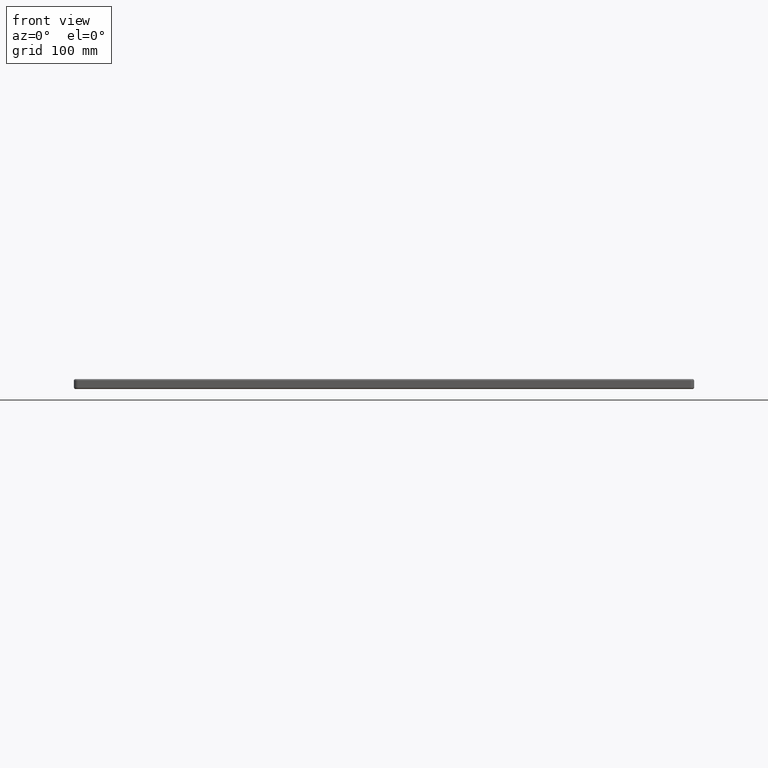
[diagram: clean part render]
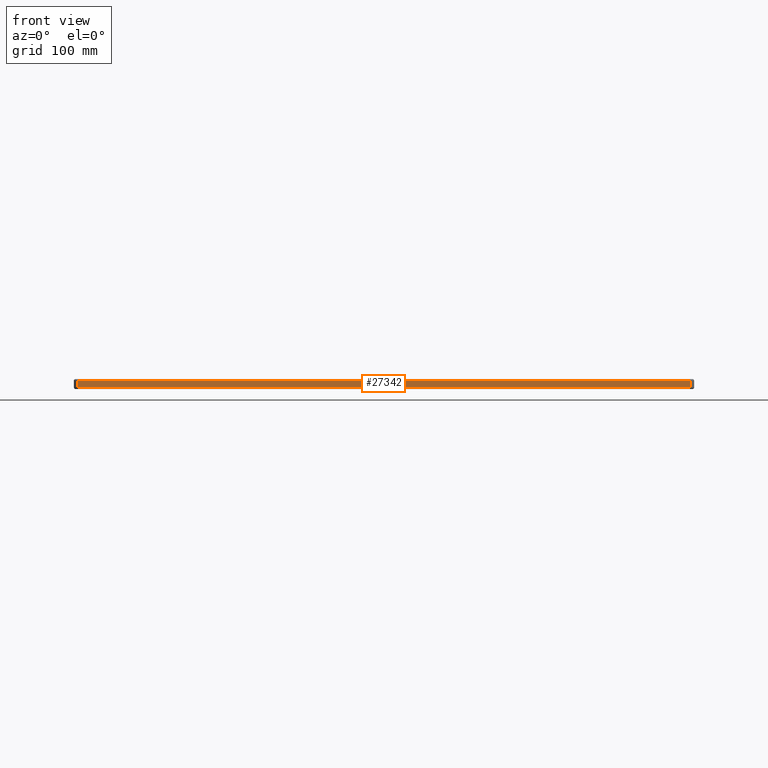
[diagram: same view with one face highlighted and labeled with its STEP entity id]
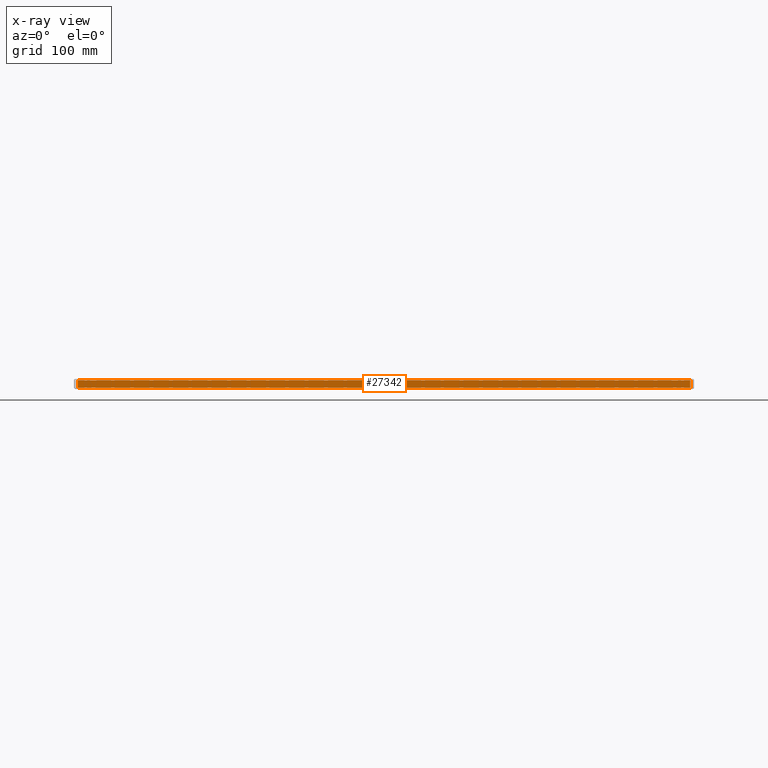
[diagram: x-ray of the same camera — body ghosted, the highlighted face saturated]
A machine part, front view. The second image highlights one B-rep face of the part: STEP entity #27342.
The next image is the same camera in x-ray: the body ghosted, the highlighted face saturated — about 0% of this face is hidden behind the body in this view.
In plain terms, the highlighted planar face has unit normal (0, -1, 0).
Its self-contained STEP definition (entity closure, byte-faithful):
#108 = FACE_OUTER_BOUND ( 'NONE', #8985, .T. ) ;
#1049 = EDGE_CURVE ( 'NONE', #7390, #21764, #18574, .T. ) ;
#2331 = ORIENTED_EDGE ( 'NONE', *, *, #20813, .T. ) ;
#3205 = CARTESIAN_POINT ( 'NONE',  ( 795.0000000000000000, 0.0000000000000000000, -13.00000000000000000 ) ) ;
#4973 = ORIENTED_EDGE ( 'NONE', *, *, #16208, .T. ) ;
#5797 = CARTESIAN_POINT ( 'NONE',  ( 4.999999999999999100, 0.0000000000000000000, -2.000000000000000000 ) ) ;
#6537 = CARTESIAN_POINT ( 'NONE',  ( 795.0000000000000000, 0.0000000000000000000, -11.00000000000000000 ) ) ;
#7070 = CARTESIAN_POINT ( 'NONE',  ( 795.0000000000000000, 0.0000000000000000000, -2.000000000000000000 ) ) ;
#7390 = VERTEX_POINT ( 'NONE', #28484 ) ;
#8748 = EDGE_CURVE ( 'NONE', #22619, #12298, #32736, .T. ) ;
#8985 = EDGE_LOOP ( 'NONE', ( #26076, #4973, #22238, #2331 ) ) ;
#9256 = PLANE ( 'NONE',  #14086 ) ;
#9551 = DIRECTION ( 'NONE',  ( 0.0000000000000000000, -1.000000000000000000, 0.0000000000000000000 ) ) ;
#12298 = VERTEX_POINT ( 'NONE', #7070 ) ;
#12572 = VECTOR ( 'NONE', #37305, 1000.000000000000000 ) ;
#12902 = DIRECTION ( 'NONE',  ( 0.0000000000000000000, -0.0000000000000000000, -1.000000000000000000 ) ) ;
#13292 = VECTOR ( 'NONE', #24519, 1000.000000000000000 ) ;
#14086 = AXIS2_PLACEMENT_3D ( 'NONE', #40655, #9551, #12902 ) ;
#15876 = CARTESIAN_POINT ( 'NONE',  ( 4.999999999999999100, 0.0000000000000000000, -11.00000000000000000 ) ) ;
#16208 = EDGE_CURVE ( 'NONE', #21764, #22619, #41650, .T. ) ;
#18574 = LINE ( 'NONE', #43560, #32188 ) ;
#20390 = DIRECTION ( 'NONE',  ( -0.0000000000000000000, 0.0000000000000000000, 1.000000000000000000 ) ) ;
#20813 = EDGE_CURVE ( 'NONE', #12298, #7390, #38771, .T. ) ;
#21764 = VERTEX_POINT ( 'NONE', #15876 ) ;
#22238 = ORIENTED_EDGE ( 'NONE', *, *, #8748, .T. ) ;
#22619 = VERTEX_POINT ( 'NONE', #6537 ) ;
#24519 = DIRECTION ( 'NONE',  ( 1.000000000000000000, 0.0000000000000000000, 0.0000000000000000000 ) ) ;
#26076 = ORIENTED_EDGE ( 'NONE', *, *, #1049, .T. ) ;
#27342 = ADVANCED_FACE ( 'NONE', ( #108 ), #9256, .T. ) ;
#27730 = CARTESIAN_POINT ( 'NONE',  ( 0.0000000000000000000, 0.0000000000000000000, -11.00000000000000000 ) ) ;
#28484 = CARTESIAN_POINT ( 'NONE',  ( 4.999999999999999100, 0.0000000000000000000, -2.000000000000000000 ) ) ;
#32188 = VECTOR ( 'NONE', #43703, 1000.000000000000000 ) ;
#32736 = LINE ( 'NONE', #3205, #43690 ) ;
#37305 = DIRECTION ( 'NONE',  ( -1.000000000000000000, -0.0000000000000000000, 0.0000000000000000000 ) ) ;
#38771 = LINE ( 'NONE', #5797, #12572 ) ;
#40655 = CARTESIAN_POINT ( 'NONE',  ( 0.0000000000000000000, 0.0000000000000000000, -13.00000000000000000 ) ) ;
#41650 = LINE ( 'NONE', #27730, #13292 ) ;
#43560 = CARTESIAN_POINT ( 'NONE',  ( 4.999999999999999100, 0.0000000000000000000, -13.00000000000000000 ) ) ;
#43690 = VECTOR ( 'NONE', #20390, 1000.000000000000000 ) ;
#43703 = DIRECTION ( 'NONE',  ( -0.0000000000000000000, -0.0000000000000000000, -1.000000000000000000 ) ) ;